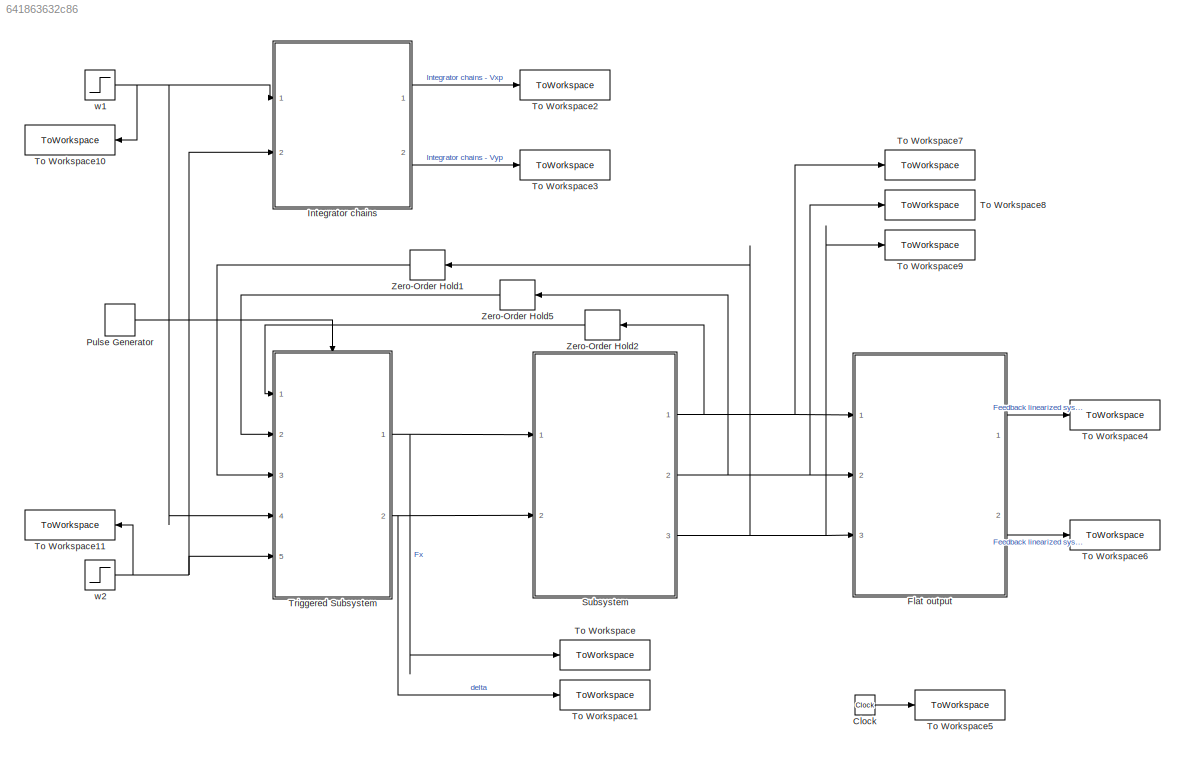
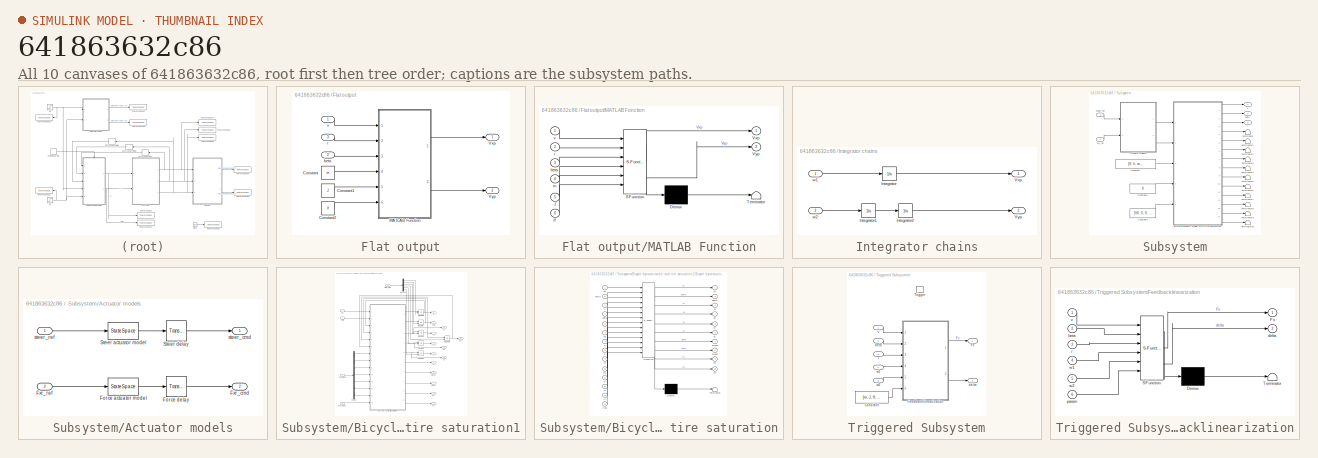
[diagram: thumbnail index - all 10 canvases of the model, root first then tree order]
MODEL slx_641863632c86
KIND model
CONFIG AbsTol = auto
CONFIG EnableMultiTasking = off
CONFIG FixedStep = auto
CONFIG MaxStep = auto
CONFIG MinStep = auto
CONFIG PostLoadFcn = clear all;\n\nlf  = 0.1368;\nlr  = 0.1232;\nm  = 1.9;\nmu = 0.385;\nCf = 50.13;\nCr = 122.05;\nJ = 0.029;\n\nV0 = 1;\nVxp0 = 1;\nVxpf = 5;\nVyp0 = 0;\nVypf = 1;\n
CONFIG RelTol = 1e-3
CONFIG SampleTimeConstraint = Unconstrained
CONFIG SolverName = ode45
CONFIG StartTime = 0.0
CONFIG StopTime = 20
BLOCK [Clock] Clock
BLOCK [SubSystem] Flat output
  Ports = [3, 2]
  RequestExecContextInheritance = off
BLOCK [Constant] Flat output/Constant
  Value = m
BLOCK [Constant] Flat output/Constant1
  Value = J
BLOCK [Constant] Flat output/Constant2
  Value = lf
BLOCK [SubSystem] Flat output/MATLAB Function
  ErrorFcn = Stateflow.Translate.translate
  PermitHierarchicalResolution = ExplicitOnly
  Ports = [6, 2]
  RequestExecContextInheritance = off
  SFBlockType = MATLAB Function
  TreatAsAtomicUnit = on
BLOCK [Demux] Flat output/MATLAB Function/ Demux 
  Outputs = 1
  Ports = [1, 1]
BLOCK [S-Function] Flat output/MATLAB Function/ SFunction 
  EnableBusSupport = on
  FunctionName = sf_sfun
  PortCounts = [6 3]
  Ports = [6, 3]
  SFcnIsStateOwnerBlock = off
  SFunctionDeploymentMode = off
  Tag = Stateflow S-Function 4
BLOCK [Terminator] Flat output/MATLAB Function/ Terminator 
BLOCK [Inport] Flat output/MATLAB Function/J
  Port = 5
BLOCK [Outport] Flat output/MATLAB Function/Vxp
BLOCK [Outport] Flat output/MATLAB Function/Vyp
  Port = 2
BLOCK [Inport] Flat output/MATLAB Function/beta
  Port = 3
BLOCK [Inport] Flat output/MATLAB Function/lf
  Port = 6
BLOCK [Inport] Flat output/MATLAB Function/m
  Port = 4
BLOCK [Inport] Flat output/MATLAB Function/r
  Port = 2
BLOCK [Inport] Flat output/MATLAB Function/v
BLOCK [Outport] Flat output/Vxp
BLOCK [Outport] Flat output/Vyp
  Port = 2
BLOCK [Inport] Flat output/beta
  Port = 2
BLOCK [Inport] Flat output/r
  Port = 3
BLOCK [Inport] Flat output/v
BLOCK [SubSystem] Integrator chains
  Ports = [2, 2]
  RequestExecContextInheritance = off
BLOCK [Integrator] Integrator chains/Integrator
  InitialCondition = V0
  Ports = [1, 1]
BLOCK [Integrator] Integrator chains/Integrator1
  Ports = [1, 1]
BLOCK [Integrator] Integrator chains/Integrator2
  Ports = [1, 1]
BLOCK [Outport] Integrator chains/Vxp
BLOCK [Outport] Integrator chains/Vyp
  Port = 2
BLOCK [Inport] Integrator chains/w1
BLOCK [Inport] Integrator chains/w2
  Port = 2
BLOCK [DiscretePulseGenerator] Pulse Generator
  Period = 0.01
  Ports = [0, 1]
  PulseType = Time based
  PulseWidth = 50
BLOCK [SubSystem] Subsystem
  Ports = [2, 3]
  RequestExecContextInheritance = off
BLOCK [SubSystem] Subsystem/Actuator models
  Ports = [2, 2]
  RequestExecContextInheritance = off
BLOCK [StateSpace] Subsystem/Actuator models/Force actuator model
  A = [0, 1; -wn_force^2, -2*csi_force*wn_force]
  B = [0; mu_force*wn_force^2]
  C = [1, 0]
  D = 0
  InitialCondition = [force_initial, 0]
  Ports = [1, 1]
BLOCK [TransportDelay] Subsystem/Actuator models/Force delay
  DelayTime = tau_force
  InitialOutput = force_initial
  Ports = [1, 1]
BLOCK [Outport] Subsystem/Actuator models/Fxr_cmd
  Port = 2
BLOCK [Inport] Subsystem/Actuator models/Fxr_ref
  Port = 2
BLOCK [StateSpace] Subsystem/Actuator models/Steer actuator model
  A = [0, 1; -wn_steer^2, -2*csi_steer*wn_steer]
  B = [0; mu_steer*wn_steer^2]
  C = [1, 0]
  D = 0
  InitialCondition = [steer_initial, 0]
  Ports = [1, 1]
BLOCK [TransportDelay] Subsystem/Actuator models/Steer delay
  DelayTime = tau_steer
  InitialOutput = steer_initial
  Ports = [1, 1]
BLOCK [Outport] Subsystem/Actuator models/steer_cmd
BLOCK [Inport] Subsystem/Actuator models/steer_ref
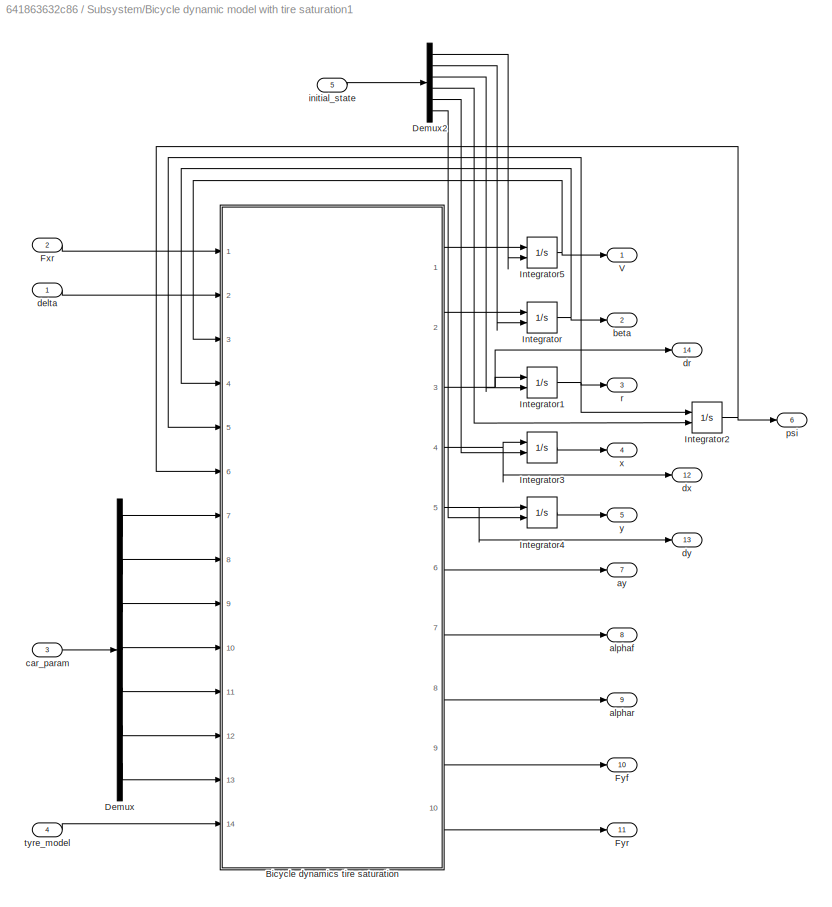
BLOCK [SubSystem] Subsystem/Bicycle dynamic model with tire saturation1
  Ports = [5, 14]
  RequestExecContextInheritance = off
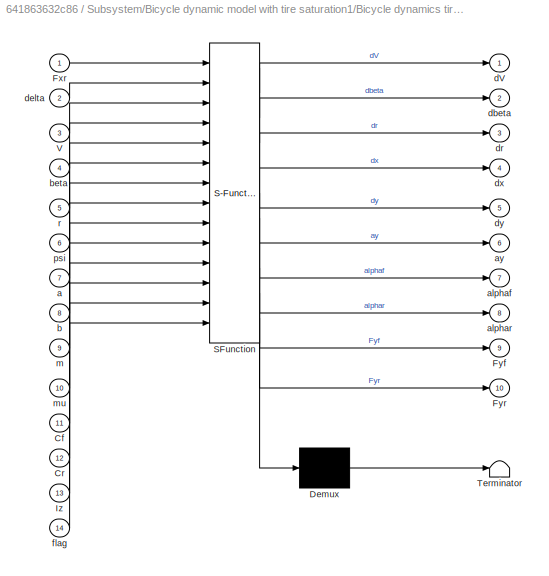
BLOCK [SubSystem] Subsystem/Bicycle dynamic model with tire saturation1/Bicycle dynamics tire saturation
  ErrorFcn = Stateflow.Translate.translate
  PermitHierarchicalResolution = ExplicitOnly
  Ports = [14, 10]
  RequestExecContextInheritance = off
  SFBlockType = MATLAB Function
  TreatAsAtomicUnit = on
BLOCK [Demux] Subsystem/Bicycle dynamic model with tire saturation1/Bicycle dynamics tire saturation/ Demux 
  Outputs = 1
  Ports = [1, 1]
BLOCK [S-Function] Subsystem/Bicycle dynamic model with tire saturation1/Bicycle dynamics tire saturation/ SFunction 
  EnableBusSupport = on
  FunctionName = sf_sfun
  PortCounts = [14 11]
  Ports = [14, 11]
  SFcnIsStateOwnerBlock = off
  SFunctionDeploymentMode = off
  Tag = Stateflow S-Function 1
BLOCK [Terminator] Subsystem/Bicycle dynamic model with tire saturation1/Bicycle dynamics tire saturation/ Terminator 
BLOCK [Inport] Subsystem/Bicycle dynamic model with tire saturation1/Bicycle dynamics tire saturation/Cf
  Port = 11
BLOCK [Inport] Subsystem/Bicycle dynamic model with tire saturation1/Bicycle dynamics tire saturation/Cr
  Port = 12
BLOCK [Inport] Subsystem/Bicycle dynamic model with tire saturation1/Bicycle dynamics tire saturation/Fxr
BLOCK [Outport] Subsystem/Bicycle dynamic model with tire saturation1/Bicycle dynamics tire saturation/Fyf
  Port = 9
BLOCK [Outport] Subsystem/Bicycle dynamic model with tire saturation1/Bicycle dynamics tire saturation/Fyr
  Port = 10
BLOCK [Inport] Subsystem/Bicycle dynamic model with tire saturation1/Bicycle dynamics tire saturation/Iz
  Port = 13
BLOCK [Inport] Subsystem/Bicycle dynamic model with tire saturation1/Bicycle dynamics tire saturation/V
  Port = 3
BLOCK [Inport] Subsystem/Bicycle dynamic model with tire saturation1/Bicycle dynamics tire saturation/a
  Port = 7
BLOCK [Outport] Subsystem/Bicycle dynamic model with tire saturation1/Bicycle dynamics tire saturation/alphaf
  Port = 7
BLOCK [Outport] Subsystem/Bicycle dynamic model with tire saturation1/Bicycle dynamics tire saturation/alphar
  Port = 8
BLOCK [Outport] Subsystem/Bicycle dynamic model with tire saturation1/Bicycle dynamics tire saturation/ay
  Port = 6
BLOCK [Inport] Subsystem/Bicycle dynamic model with tire saturation1/Bicycle dynamics tire saturation/b
  Port = 8
BLOCK [Inport] Subsystem/Bicycle dynamic model with tire saturation1/Bicycle dynamics tire saturation/beta
  Port = 4
BLOCK [Outport] Subsystem/Bicycle dynamic model with tire saturation1/Bicycle dynamics tire saturation/dV
BLOCK [Outport] Subsystem/Bicycle dynamic model with tire saturation1/Bicycle dynamics tire saturation/dbeta
  Port = 2
BLOCK [Inport] Subsystem/Bicycle dynamic model with tire saturation1/Bicycle dynamics tire saturation/delta
  Port = 2
BLOCK [Outport] Subsystem/Bicycle dynamic model with tire saturation1/Bicycle dynamics tire saturation/dr
  Port = 3
  VectorParamsAs1DForOutWhenUnconnected = off
BLOCK [Outport] Subsystem/Bicycle dynamic model with tire saturation1/Bicycle dynamics tire saturation/dx
  Port = 4
BLOCK [Outport] Subsystem/Bicycle dynamic model with tire saturation1/Bicycle dynamics tire saturation/dy
  Port = 5
BLOCK [Inport] Subsystem/Bicycle dynamic model with tire saturation1/Bicycle dynamics tire saturation/flag
  Port = 14
BLOCK [Inport] Subsystem/Bicycle dynamic model with tire saturation1/Bicycle dynamics tire saturation/m
  Port = 9
BLOCK [Inport] Subsystem/Bicycle dynamic model with tire saturation1/Bicycle dynamics tire saturation/mu
  Port = 10
BLOCK [Inport] Subsystem/Bicycle dynamic model with tire saturation1/Bicycle dynamics tire saturation/psi
  Port = 6
BLOCK [Inport] Subsystem/Bicycle dynamic model with tire saturation1/Bicycle dynamics tire saturation/r
  Port = 5
BLOCK [Demux] Subsystem/Bicycle dynamic model with tire saturation1/Demux
  Outputs = 7
  Ports = [1, 7]
BLOCK [Demux] Subsystem/Bicycle dynamic model with tire saturation1/Demux2
  Outputs = 6
  Ports = [1, 6]
BLOCK [Inport] Subsystem/Bicycle dynamic model with tire saturation1/Fxr
  Port = 2
BLOCK [Outport] Subsystem/Bicycle dynamic model with tire saturation1/Fyf
  Port = 10
BLOCK [Outport] Subsystem/Bicycle dynamic model with tire saturation1/Fyr
  Port = 11
BLOCK [Integrator] Subsystem/Bicycle dynamic model with tire saturation1/Integrator
  InitialConditionSource = external
  Ports = [2, 1]
BLOCK [Integrator] Subsystem/Bicycle dynamic model with tire saturation1/Integrator1
  InitialConditionSource = external
  Ports = [2, 1]
BLOCK [Integrator] Subsystem/Bicycle dynamic model with tire saturation1/Integrator2
  InitialConditionSource = external
  Ports = [2, 1]
BLOCK [Integrator] Subsystem/Bicycle dynamic model with tire saturation1/Integrator3
  InitialConditionSource = external
  Ports = [2, 1]
BLOCK [Integrator] Subsystem/Bicycle dynamic model with tire saturation1/Integrator4
  InitialConditionSource = external
  Ports = [2, 1]
BLOCK [Integrator] Subsystem/Bicycle dynamic model with tire saturation1/Integrator5
  InitialConditionSource = external
  Ports = [2, 1]
BLOCK [Outport] Subsystem/Bicycle dynamic model with tire saturation1/V
BLOCK [Outport] Subsystem/Bicycle dynamic model with tire saturation1/alphaf
  Port = 8
BLOCK [Outport] Subsystem/Bicycle dynamic model with tire saturation1/alphar
  Port = 9
BLOCK [Outport] Subsystem/Bicycle dynamic model with tire saturation1/ay
  Port = 7
BLOCK [Outport] Subsystem/Bicycle dynamic model with tire saturation1/beta
  Port = 2
BLOCK [Inport] Subsystem/Bicycle dynamic model with tire saturation1/car_param
  Port = 3
BLOCK [Inport] Subsystem/Bicycle dynamic model with tire saturation1/delta
BLOCK [Outport] Subsystem/Bicycle dynamic model with tire saturation1/dr
  Port = 14
BLOCK [Outport] Subsystem/Bicycle dynamic model with tire saturation1/dx
  Port = 12
BLOCK [Outport] Subsystem/Bicycle dynamic model with tire saturation1/dy
  Port = 13
BLOCK [Inport] Subsystem/Bicycle dynamic model with tire saturation1/initial_state 
  Port = 5
BLOCK [Outport] Subsystem/Bicycle dynamic model with tire saturation1/psi
  Port = 6
BLOCK [Outport] Subsystem/Bicycle dynamic model with tire saturation1/r
  Port = 3
BLOCK [Inport] Subsystem/Bicycle dynamic model with tire saturation1/tyre_model
  Port = 4
BLOCK [Outport] Subsystem/Bicycle dynamic model with tire saturation1/x
  Port = 4
BLOCK [Outport] Subsystem/Bicycle dynamic model with tire saturation1/y
  Port = 5
BLOCK [Constant] Subsystem/Constant1
  Value = [lf, lr, m, mu, Cf, Cr, J]
BLOCK [Constant] Subsystem/Constant2
  Value = 0
BLOCK [Constant] Subsystem/Constant3
  Value = [V0, 0, 0, 0, 0, 0]
BLOCK [Inport] Subsystem/Fxr_ref
BLOCK [Terminator] Subsystem/Terminator
BLOCK [Terminator] Subsystem/Terminator1
BLOCK [Terminator] Subsystem/Terminator10
BLOCK [Terminator] Subsystem/Terminator2
BLOCK [Terminator] Subsystem/Terminator3
BLOCK [Terminator] Subsystem/Terminator4
BLOCK [Terminator] Subsystem/Terminator5
BLOCK [Terminator] Subsystem/Terminator6
BLOCK [Terminator] Subsystem/Terminator7
BLOCK [Terminator] Subsystem/Terminator8
BLOCK [Terminator] Subsystem/Terminator9
BLOCK [Outport] Subsystem/V
BLOCK [Outport] Subsystem/beta
  Port = 2
BLOCK [Outport] Subsystem/r
  Port = 3
BLOCK [Inport] Subsystem/steer_ref
  Port = 2
BLOCK [ToWorkspace] To Workspace
  FixptAsFi = on
  MaxDataPoints = inf
  Ports = [1]
  SampleTime = 0.001
  Save2DSignal = 2-D array (concatenate along first dimension)
  VariableName = Fx
BLOCK [ToWorkspace] To Workspace1
  FixptAsFi = on
  MaxDataPoints = inf
  Ports = [1]
  SampleTime = 0.001
  Save2DSignal = 2-D array (concatenate along first dimension)
  VariableName = delta
BLOCK [ToWorkspace] To Workspace10
  FixptAsFi = on
  MaxDataPoints = inf
  Ports = [1]
  SampleTime = 0.001
  Save2DSignal = 2-D array (concatenate along first dimension)
  VariableName = w1
BLOCK [ToWorkspace] To Workspace11
  FixptAsFi = on
  MaxDataPoints = inf
  Ports = [1]
  SampleTime = 0.001
  Save2DSignal = 2-D array (concatenate along first dimension)
  VariableName = w2
BLOCK [ToWorkspace] To Workspace2
  FixptAsFi = on
  MaxDataPoints = inf
  Ports = [1]
  SampleTime = 0.001
  Save2DSignal = 2-D array (concatenate along first dimension)
  VariableName = Vxp_nom
BLOCK [ToWorkspace] To Workspace3
  FixptAsFi = on
  MaxDataPoints = inf
  Ports = [1]
  SampleTime = 0.001
  Save2DSignal = 2-D array (concatenate along first dimension)
  VariableName = Vyp_nom
BLOCK [ToWorkspace] To Workspace4
  FixptAsFi = on
  MaxDataPoints = inf
  Ports = [1]
  SampleTime = 0.001
  Save2DSignal = 2-D array (concatenate along first dimension)
  VariableName = Vxp
BLOCK [ToWorkspace] To Workspace5
  FixptAsFi = on
  MaxDataPoints = inf
  Ports = [1]
  SampleTime = 0.001
  Save2DSignal = 2-D array (concatenate along first dimension)
  VariableName = t
BLOCK [ToWorkspace] To Workspace6
  FixptAsFi = on
  MaxDataPoints = inf
  Ports = [1]
  SampleTime = 0.001
  Save2DSignal = 2-D array (concatenate along first dimension)
  VariableName = Vyp
BLOCK [ToWorkspace] To Workspace7
  FixptAsFi = on
  MaxDataPoints = inf
  Ports = [1]
  SampleTime = 0.001
  Save2DSignal = 2-D array (concatenate along first dimension)
  VariableName = v
BLOCK [ToWorkspace] To Workspace8
  FixptAsFi = on
  MaxDataPoints = inf
  Ports = [1]
  SampleTime = 0.001
  Save2DSignal = 2-D array (concatenate along first dimension)
  VariableName = beta
BLOCK [ToWorkspace] To Workspace9
  FixptAsFi = on
  MaxDataPoints = inf
  Ports = [1]
  SampleTime = 0.001
  Save2DSignal = 2-D array (concatenate along first dimension)
  VariableName = r
BLOCK [SubSystem] Triggered Subsystem
  Ports = [5, 2, 0, 1]
  RequestExecContextInheritance = off
  TreatAsAtomicUnit = on
BLOCK [Constant] Triggered Subsystem/Constant
  Value = [m, J, lf, lr, Cf, Cr]
BLOCK [SubSystem] Triggered Subsystem/Feedbacklinearization
  ErrorFcn = Stateflow.Translate.translate
  PermitHierarchicalResolution = ExplicitOnly
  Ports = [6, 2]
  RequestExecContextInheritance = off
  SFBlockType = MATLAB Function
  TreatAsAtomicUnit = on
BLOCK [Demux] Triggered Subsystem/Feedbacklinearization/ Demux 
  Outputs = 1
  Ports = [1, 1]
BLOCK [S-Function] Triggered Subsystem/Feedbacklinearization/ SFunction 
  EnableBusSupport = on
  FunctionName = sf_sfun
  PortCounts = [6 3]
  Ports = [6, 3]
  SFcnIsStateOwnerBlock = off
  SFunctionDeploymentMode = off
  Tag = Stateflow S-Function 2
BLOCK [Terminator] Triggered Subsystem/Feedbacklinearization/ Terminator 
BLOCK [Outport] Triggered Subsystem/Feedbacklinearization/Fx
BLOCK [Inport] Triggered Subsystem/Feedbacklinearization/beta
  Port = 2
BLOCK [Outport] Triggered Subsystem/Feedbacklinearization/delta
  Port = 2
BLOCK [Inport] Triggered Subsystem/Feedbacklinearization/param
  Port = 6
BLOCK [Inport] Triggered Subsystem/Feedbacklinearization/r
  Port = 3
BLOCK [Inport] Triggered Subsystem/Feedbacklinearization/v
BLOCK [Inport] Triggered Subsystem/Feedbacklinearization/w1
  Port = 4
BLOCK [Inport] Triggered Subsystem/Feedbacklinearization/w2
  Port = 5
BLOCK [Outport] Triggered Subsystem/Fx
BLOCK [TriggerPort] Triggered Subsystem/Trigger
  Ports = []
  StatesWhenEnabling = held
  VariantControl = (inherit)
BLOCK [Inport] Triggered Subsystem/beta
  Port = 2
BLOCK [Outport] Triggered Subsystem/delta
  Port = 2
BLOCK [Inport] Triggered Subsystem/r
  Port = 3
BLOCK [Inport] Triggered Subsystem/v
BLOCK [Inport] Triggered Subsystem/w1
  Port = 4
BLOCK [Inport] Triggered Subsystem/w2
  Port = 5
BLOCK [ZeroOrderHold] Zero-Order Hold1
  SampleTime = 0.01
BLOCK [ZeroOrderHold] Zero-Order Hold2
  SampleTime = 0.01
BLOCK [ZeroOrderHold] Zero-Order Hold5
  SampleTime = 0.01
BLOCK [Step] w1
  After = Vxpf
  Before = Vxp0
  SampleTime = 0
BLOCK [Step] w2
  After = Vypf
  Before = Vyp0
  SampleTime = 0
  Time = 5
LINE Clock:1 -> To Workspace5:1
LINE Flat output/Constant1:1 -> Flat output/MATLAB Function:5
LINE Flat output/Constant2:1 -> Flat output/MATLAB Function:6
LINE Flat output/Constant:1 -> Flat output/MATLAB Function:4
LINE Flat output/MATLAB Function:1 -> Flat output/Vxp:1
LINE Flat output/MATLAB Function:2 -> Flat output/Vyp:1
LINE Flat output/beta:1 -> Flat output/MATLAB Function:3
LINE Flat output/r:1 -> Flat output/MATLAB Function:2
LINE Flat output/v:1 -> Flat output/MATLAB Function:1
LINE Flat output:1 -> To Workspace4:1
LINE Flat output:2 -> To Workspace6:1
LINE Integrator chains/Integrator1:1 -> Integrator chains/Integrator2:1
LINE Integrator chains/Integrator2:1 -> Integrator chains/Vyp:1
LINE Integrator chains/Integrator:1 -> Integrator chains/Vxp:1
LINE Integrator chains/w1:1 -> Integrator chains/Integrator:1
LINE Integrator chains/w2:1 -> Integrator chains/Integrator1:1
LINE Integrator chains:1 -> To Workspace2:1
LINE Integrator chains:2 -> To Workspace3:1
LINE Pulse Generator:1 -> Triggered Subsystem:trigger
LINE Subsystem/Actuator models/Force actuator model:1 -> Subsystem/Actuator models/Force delay:1
LINE Subsystem/Actuator models/Force delay:1 -> Subsystem/Actuator models/Fxr_cmd:1
LINE Subsystem/Actuator models/Fxr_ref:1 -> Subsystem/Actuator models/Force actuator model:1
LINE Subsystem/Actuator models/Steer actuator model:1 -> Subsystem/Actuator models/Steer delay:1
LINE Subsystem/Actuator models/Steer delay:1 -> Subsystem/Actuator models/steer_cmd:1
LINE Subsystem/Actuator models/steer_ref:1 -> Subsystem/Actuator models/Steer actuator model:1
LINE Subsystem/Actuator models:1 -> Subsystem/Bicycle dynamic model with tire saturation1:1
LINE Subsystem/Actuator models:2 -> Subsystem/Bicycle dynamic model with tire saturation1:2
LINE Subsystem/Bicycle dynamic model with tire saturation1/Bicycle dynamics tire saturation:1 -> Subsystem/Bicycle dynamic model with tire saturation1/Integrator5:1
LINE Subsystem/Bicycle dynamic model with tire saturation1/Bicycle dynamics tire saturation:10 -> Subsystem/Bicycle dynamic model with tire saturation1/Fyr:1
LINE Subsystem/Bicycle dynamic model with tire saturation1/Bicycle dynamics tire saturation:2 -> Subsystem/Bicycle dynamic model with tire saturation1/Integrator:1
NET Subsystem/Bicycle dynamic model with tire saturation1/Bicycle dynamics tire saturation:3 -> Subsystem/Bicycle dynamic model with tire saturation1/Integrator1:1, Subsystem/Bicycle dynamic model with tire saturation1/dr:1
NET Subsystem/Bicycle dynamic model with tire saturation1/Bicycle dynamics tire saturation:4 -> Subsystem/Bicycle dynamic model with tire saturation1/Integrator3:1, Subsystem/Bicycle dynamic model with tire saturation1/dx:1
NET Subsystem/Bicycle dynamic model with tire saturation1/Bicycle dynamics tire saturation:5 -> Subsystem/Bicycle dynamic model with tire saturation1/Integrator4:1, Subsystem/Bicycle dynamic model with tire saturation1/dy:1
LINE Subsystem/Bicycle dynamic model with tire saturation1/Bicycle dynamics tire saturation:6 -> Subsystem/Bicycle dynamic model with tire saturation1/ay:1
LINE Subsystem/Bicycle dynamic model with tire saturation1/Bicycle dynamics tire saturation:7 -> Subsystem/Bicycle dynamic model with tire saturation1/alphaf:1
LINE Subsystem/Bicycle dynamic model with tire saturation1/Bicycle dynamics tire saturation:8 -> Subsystem/Bicycle dynamic model with tire saturation1/alphar:1
LINE Subsystem/Bicycle dynamic model with tire saturation1/Bicycle dynamics tire saturation:9 -> Subsystem/Bicycle dynamic model with tire saturation1/Fyf:1
LINE Subsystem/Bicycle dynamic model with tire saturation1/Demux2:1 -> Subsystem/Bicycle dynamic model with tire saturation1/Integrator5:2
LINE Subsystem/Bicycle dynamic model with tire saturation1/Demux2:2 -> Subsystem/Bicycle dynamic model with tire saturation1/Integrator:2
LINE Subsystem/Bicycle dynamic model with tire saturation1/Demux2:3 -> Subsystem/Bicycle dynamic model with tire saturation1/Integrator1:2
LINE Subsystem/Bicycle dynamic model with tire saturation1/Demux2:4 -> Subsystem/Bicycle dynamic model with tire saturation1/Integrator2:2
LINE Subsystem/Bicycle dynamic model with tire saturation1/Demux2:5 -> Subsystem/Bicycle dynamic model with tire saturation1/Integrator3:2
LINE Subsystem/Bicycle dynamic model with tire saturation1/Demux2:6 -> Subsystem/Bicycle dynamic model with tire saturation1/Integrator4:2
LINE Subsystem/Bicycle dynamic model with tire saturation1/Demux:1 -> Subsystem/Bicycle dynamic model with tire saturation1/Bicycle dynamics tire saturation:7
LINE Subsystem/Bicycle dynamic model with tire saturation1/Demux:2 -> Subsystem/Bicycle dynamic model with tire saturation1/Bicycle dynamics tire saturation:8
LINE Subsystem/Bicycle dynamic model with tire saturation1/Demux:3 -> Subsystem/Bicycle dynamic model with tire saturation1/Bicycle dynamics tire saturation:9
LINE Subsystem/Bicycle dynamic model with tire saturation1/Demux:4 -> Subsystem/Bicycle dynamic model with tire saturation1/Bicycle dynamics tire saturation:10
LINE Subsystem/Bicycle dynamic model with tire saturation1/Demux:5 -> Subsystem/Bicycle dynamic model with tire saturation1/Bicycle dynamics tire saturation:11
LINE Subsystem/Bicycle dynamic model with tire saturation1/Demux:6 -> Subsystem/Bicycle dynamic model with tire saturation1/Bicycle dynamics tire saturation:12
LINE Subsystem/Bicycle dynamic model with tire saturation1/Demux:7 -> Subsystem/Bicycle dynamic model with tire saturation1/Bicycle dynamics tire saturation:13
LINE Subsystem/Bicycle dynamic model with tire saturation1/Fxr:1 -> Subsystem/Bicycle dynamic model with tire saturation1/Bicycle dynamics tire saturation:1
NET Subsystem/Bicycle dynamic model with tire saturation1/Integrator1:1 -> Subsystem/Bicycle dynamic model with tire saturation1/Bicycle dynamics tire saturation:5, Subsystem/Bicycle dynamic model with tire saturation1/Integrator2:1, Subsystem/Bicycle dynamic model with tire saturation1/r:1
NET Subsystem/Bicycle dynamic model with tire saturation1/Integrator2:1 -> Subsystem/Bicycle dynamic model with tire saturation1/Bicycle dynamics tire saturation:6, Subsystem/Bicycle dynamic model with tire saturation1/psi:1
LINE Subsystem/Bicycle dynamic model with tire saturation1/Integrator3:1 -> Subsystem/Bicycle dynamic model with tire saturation1/x:1
LINE Subsystem/Bicycle dynamic model with tire saturation1/Integrator4:1 -> Subsystem/Bicycle dynamic model with tire saturation1/y:1
NET Subsystem/Bicycle dynamic model with tire saturation1/Integrator5:1 -> Subsystem/Bicycle dynamic model with tire saturation1/Bicycle dynamics tire saturation:3, Subsystem/Bicycle dynamic model with tire saturation1/V:1
NET Subsystem/Bicycle dynamic model with tire saturation1/Integrator:1 -> Subsystem/Bicycle dynamic model with tire saturation1/Bicycle dynamics tire saturation:4, Subsystem/Bicycle dynamic model with tire saturation1/beta:1
LINE Subsystem/Bicycle dynamic model with tire saturation1/car_param:1 -> Subsystem/Bicycle dynamic model with tire saturation1/Demux:1
LINE Subsystem/Bicycle dynamic model with tire saturation1/delta:1 -> Subsystem/Bicycle dynamic model with tire saturation1/Bicycle dynamics tire saturation:2
LINE Subsystem/Bicycle dynamic model with tire saturation1/initial_state :1 -> Subsystem/Bicycle dynamic model with tire saturation1/Demux2:1
LINE Subsystem/Bicycle dynamic model with tire saturation1/tyre_model:1 -> Subsystem/Bicycle dynamic model with tire saturation1/Bicycle dynamics tire saturation:14
LINE Subsystem/Bicycle dynamic model with tire saturation1:1 -> Subsystem/V:1
LINE Subsystem/Bicycle dynamic model with tire saturation1:10 -> Subsystem/Terminator6:1
LINE Subsystem/Bicycle dynamic model with tire saturation1:11 -> Subsystem/Terminator7:1
LINE Subsystem/Bicycle dynamic model with tire saturation1:12 -> Subsystem/Terminator8:1
LINE Subsystem/Bicycle dynamic model with tire saturation1:13 -> Subsystem/Terminator9:1
LINE Subsystem/Bicycle dynamic model with tire saturation1:14 -> Subsystem/Terminator10:1
LINE Subsystem/Bicycle dynamic model with tire saturation1:2 -> Subsystem/beta:1
LINE Subsystem/Bicycle dynamic model with tire saturation1:3 -> Subsystem/r:1
LINE Subsystem/Bicycle dynamic model with tire saturation1:4 -> Subsystem/Terminator:1
LINE Subsystem/Bicycle dynamic model with tire saturation1:5 -> Subsystem/Terminator1:1
LINE Subsystem/Bicycle dynamic model with tire saturation1:6 -> Subsystem/Terminator2:1
LINE Subsystem/Bicycle dynamic model with tire saturation1:7 -> Subsystem/Terminator3:1
LINE Subsystem/Bicycle dynamic model with tire saturation1:8 -> Subsystem/Terminator4:1
LINE Subsystem/Bicycle dynamic model with tire saturation1:9 -> Subsystem/Terminator5:1
LINE Subsystem/Constant1:1 -> Subsystem/Bicycle dynamic model with tire saturation1:3
LINE Subsystem/Constant2:1 -> Subsystem/Bicycle dynamic model with tire saturation1:4
LINE Subsystem/Constant3:1 -> Subsystem/Bicycle dynamic model with tire saturation1:5
LINE Subsystem/Fxr_ref:1 -> Subsystem/Actuator models:2
LINE Subsystem/steer_ref:1 -> Subsystem/Actuator models:1
NET Subsystem:1 -> Flat output:1, To Workspace7:1, Zero-Order Hold2:1
NET Subsystem:2 -> Flat output:2, To Workspace8:1, Zero-Order Hold5:1
NET Subsystem:3 -> Flat output:3, To Workspace9:1, Zero-Order Hold1:1
LINE Triggered Subsystem/Constant:1 -> Triggered Subsystem/Feedbacklinearization:6
LINE Triggered Subsystem/Feedbacklinearization:1 -> Triggered Subsystem/Fx:1
LINE Triggered Subsystem/Feedbacklinearization:2 -> Triggered Subsystem/delta:1
LINE Triggered Subsystem/beta:1 -> Triggered Subsystem/Feedbacklinearization:2
LINE Triggered Subsystem/r:1 -> Triggered Subsystem/Feedbacklinearization:3
LINE Triggered Subsystem/v:1 -> Triggered Subsystem/Feedbacklinearization:1
LINE Triggered Subsystem/w1:1 -> Triggered Subsystem/Feedbacklinearization:4
LINE Triggered Subsystem/w2:1 -> Triggered Subsystem/Feedbacklinearization:5
NET Triggered Subsystem:1 -> Subsystem:1, To Workspace:1
NET Triggered Subsystem:2 -> Subsystem:2, To Workspace1:1
LINE Zero-Order Hold1:1 -> Triggered Subsystem:3
LINE Zero-Order Hold2:1 -> Triggered Subsystem:1
LINE Zero-Order Hold5:1 -> Triggered Subsystem:2
NET w1:1 -> Integrator chains:1, To Workspace10:1, Triggered Subsystem:4
NET w2:1 -> Integrator chains:2, To Workspace11:1, Triggered Subsystem:5
note: NET lines group one-source signal fan-out (src -> all destinations, sorted); 1:1 wires keep LINE
CHART Subsystem/Bicycle dynamic
model with tire saturation1/Bicycle dynamics tire saturation states=1 transitions=1
  STATE_LABEL 'eML_blk_kernel()'
  STATE_LABEL 'SCRIPT:\nfunction [dV,dbeta,dr,dx,dy,ay,alphaf,alphar,Fyf,Fyr]  = bicycle_dynamics(Fxr, delta, V, beta, r, psi, a, b, m, mu, Cf, Cr, Iz, flag)\n\nFzf = m*9.81*b/(a+b);\nFzr = m*9.81*a/(a+b);\n\nif (abs(V*cos(beta))<=0.01)\n    alphaf = 0;\n    alphar = 0;\nelse\n    alphaf = (V*sin(beta)+a*r)/(V*cos(beta))-delta;\n    alphar = (V*sin(beta)-b*r)/(V*cos(beta));\nend\n\nzf = tan(alphaf);\nzr = tan(alphar);\n\nzf_sl =...<+1097ch>'
CHART Triggered
Subsystem/Feedbacklinearization states=1 transitions=1
  STATE_LABEL 'eML_blk_kernel()'
  STATE_LABEL 'SCRIPT:\nfunction [Fx, delta] = fblin(v, beta, r, w1, w2, param)\nm  = param(1);\nJ  = param(2);\nlf = param(3);\nlr = param(4);\nCf = param(5);\nCr = param(6);\n\nl = (lf+lr)/(m*lf);\nF = -(lf*v)/J*cos(beta)+(Cr*l)./(J*m*v*cos(beta))*(lf*lr*m-J);\nR = (lr*v)/J*cos(beta)-(Cr*l)./(J*m*v*cos(beta))*(J+m*lr^2);\nH = -r*w1+(Cr*l)./(v*cos(beta)).^2*(v*w1*sin(beta)-lr*r*w1-v^2*r*sin(beta)^2+r*v^2);\n \nFry   = Cr*(lr...<+203ch>'
CHART Flat output/MATLAB Function states=1 transitions=1
  STATE_LABEL 'eML_blk_kernel()'
  STATE_LABEL 'SCRIPT:\nfunction [Vxp,Vyp] = z_tranform(v,r,beta,m,J,lf)\n\nVxp = v*cos(beta);\nVyp = v*sin(beta)-J/(m*lf)*r;\n'
CHART  states=0 transitions=0
CHART  states=0 transitions=0
CHART  states=0 transitions=0
